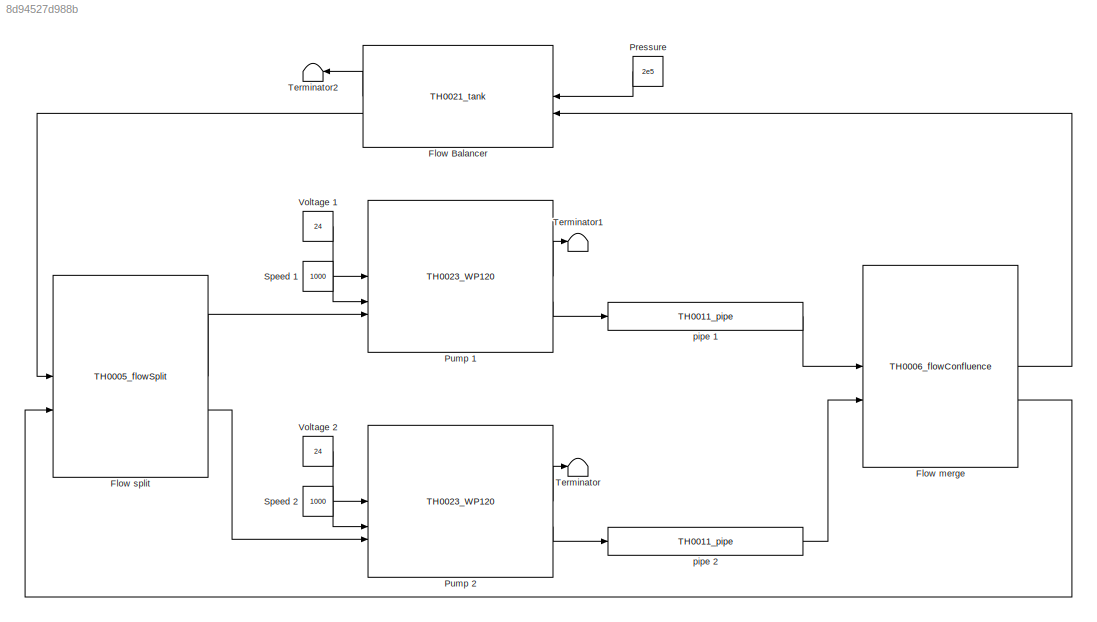
MODEL slx_8d94527d988b
KIND model
CONFIG AbsTol = auto
CONFIG EnableMultiTasking = off
CONFIG FixedStep = auto
CONFIG MaxStep = auto
CONFIG MinStep = auto
CONFIG RelTol = 1e-3
CONFIG SampleTimeConstraint = Unconstrained
CONFIG SolverName = VariableStepAuto
CONFIG StartTime = 0.0
CONFIG StopTime = 10.0
BLOCK [Reference] Flow Balancer  REF=component_lib/Thermal Systems/TH0021_tank  (lib defined in slx_7b23c5cf3aa6)
  NameLocation = top
  SourceBlock = component_lib/Thermal Systems/TH0021_tank
BLOCK [Reference] Flow merge  REF=component_lib/Thermal Systems/TH0006_flowConfluence  (lib defined in slx_7b23c5cf3aa6)
  SourceBlock = component_lib/Thermal Systems/TH0006_flowConfluence
BLOCK [Reference] Flow split  REF=component_lib/Thermal Systems/TH0005_flowSplit  (lib defined in slx_7b23c5cf3aa6)
  SourceBlock = component_lib/Thermal Systems/TH0005_flowSplit
BLOCK [Constant] Pressure
  NameLocation = top
  Value = 2e5
BLOCK [Reference] Pump 1  REF=component_lib/Thermal Systems/TH0023_WP120  (lib defined in slx_7b23c5cf3aa6)
  SourceBlock = component_lib/Thermal Systems/TH0023_WP120
BLOCK [Reference] Pump 2  REF=component_lib/Thermal Systems/TH0023_WP120  (lib defined in slx_7b23c5cf3aa6)
  SourceBlock = component_lib/Thermal Systems/TH0023_WP120
BLOCK [Constant] Speed 1
  Value = 1000
BLOCK [Constant] Speed 2
  Value = 1000
BLOCK [Terminator] Terminator
BLOCK [Terminator] Terminator1
BLOCK [Terminator] Terminator2
  NameLocation = top
BLOCK [Constant] Voltage 1
  Value = 24
BLOCK [Constant] Voltage 2
  Value = 24
BLOCK [Reference] pipe 1  REF=component_lib/Thermal Systems/TH0011_pipe  (lib defined in slx_7b23c5cf3aa6)
  SourceBlock = component_lib/Thermal Systems/TH0011_pipe
BLOCK [Reference] pipe 2  REF=component_lib/Thermal Systems/TH0011_pipe  (lib defined in slx_7b23c5cf3aa6)
  SourceBlock = component_lib/Thermal Systems/TH0011_pipe
LINE Flow Balancer:1 -> Terminator2:1
LINE Flow Balancer:2 -> Flow split:1
LINE Flow merge:1 -> Flow Balancer:2
LINE Flow merge:2 -> Flow split:2
LINE Flow split:1 -> Pump 1:3
LINE Flow split:2 -> Pump 2:3
LINE Pressure:1 -> Flow Balancer:1
LINE Pump 1:1 -> Terminator1:1
LINE Pump 1:2 -> pipe 1:1
LINE Pump 2:1 -> Terminator:1
LINE Pump 2:2 -> pipe 2:1
LINE Speed 1:1 -> Pump 1:2
LINE Speed 2:1 -> Pump 2:2
LINE Voltage 1:1 -> Pump 1:1
LINE Voltage 2:1 -> Pump 2:1
LINE pipe 1:1 -> Flow merge:1
LINE pipe 2:1 -> Flow merge:2
